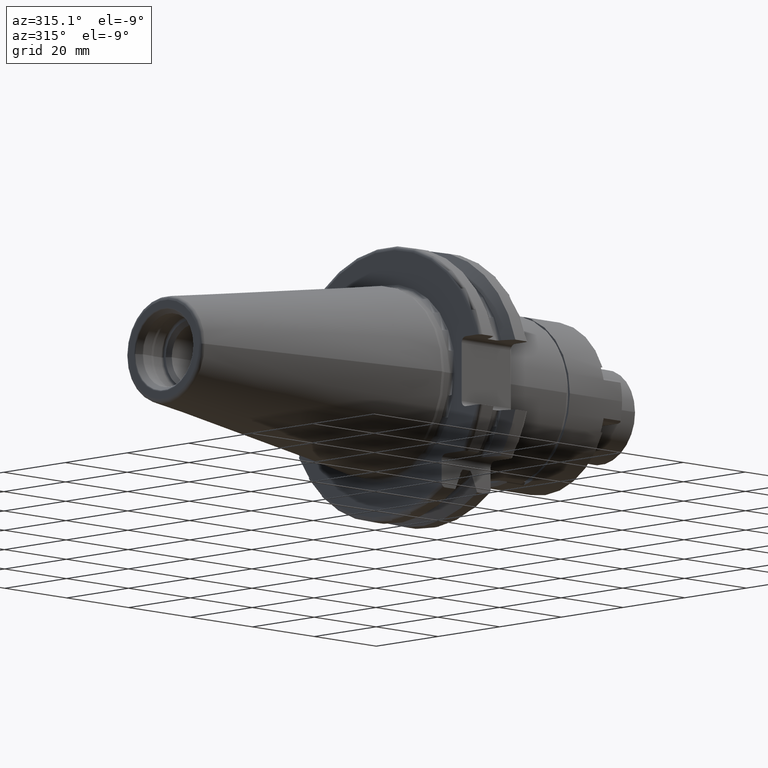
[diagram: clean part render]
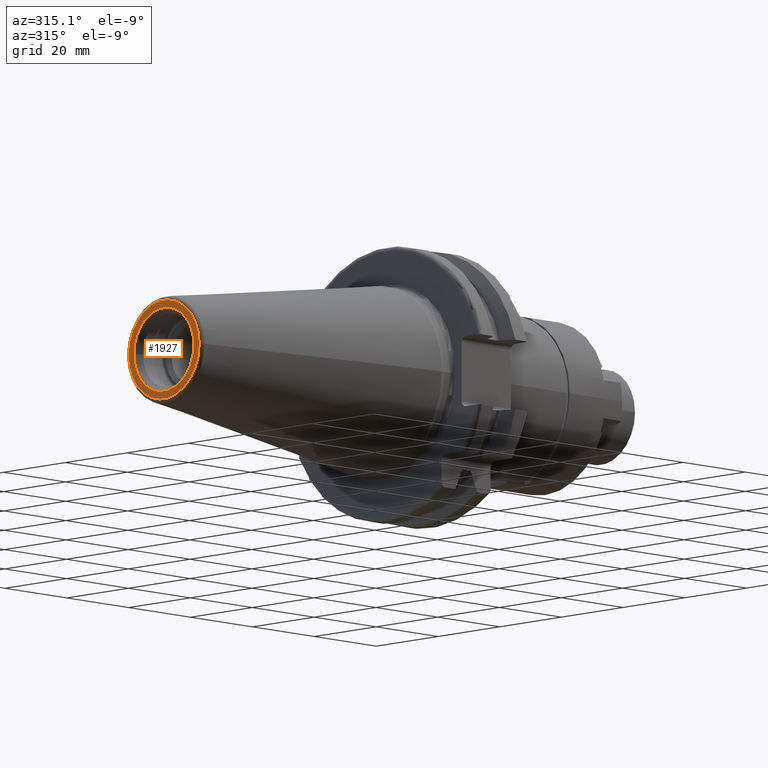
[diagram: same view with one face highlighted and labeled with its STEP entity id]
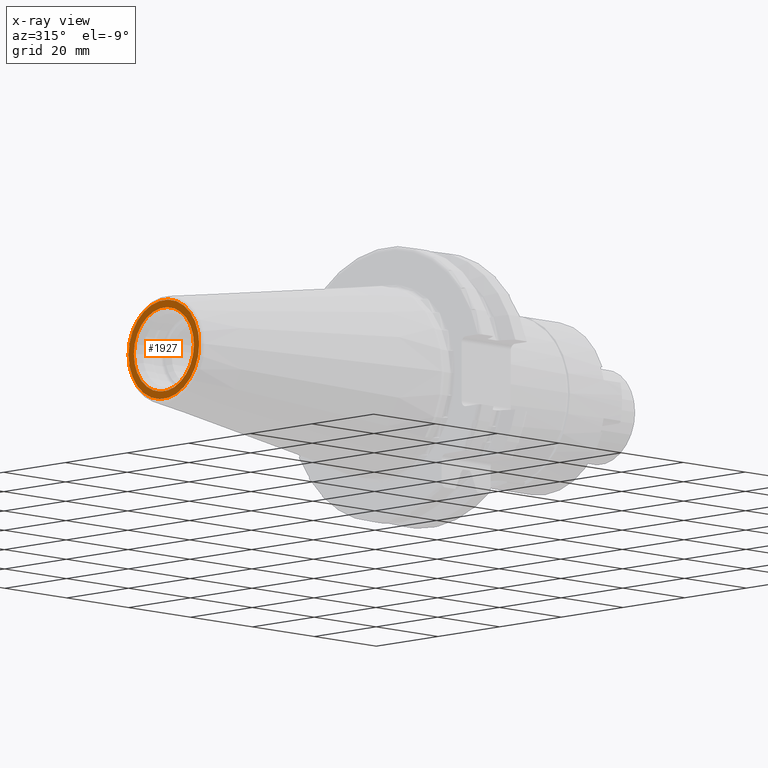
[diagram: x-ray of the same camera — body ghosted, the highlighted face saturated]
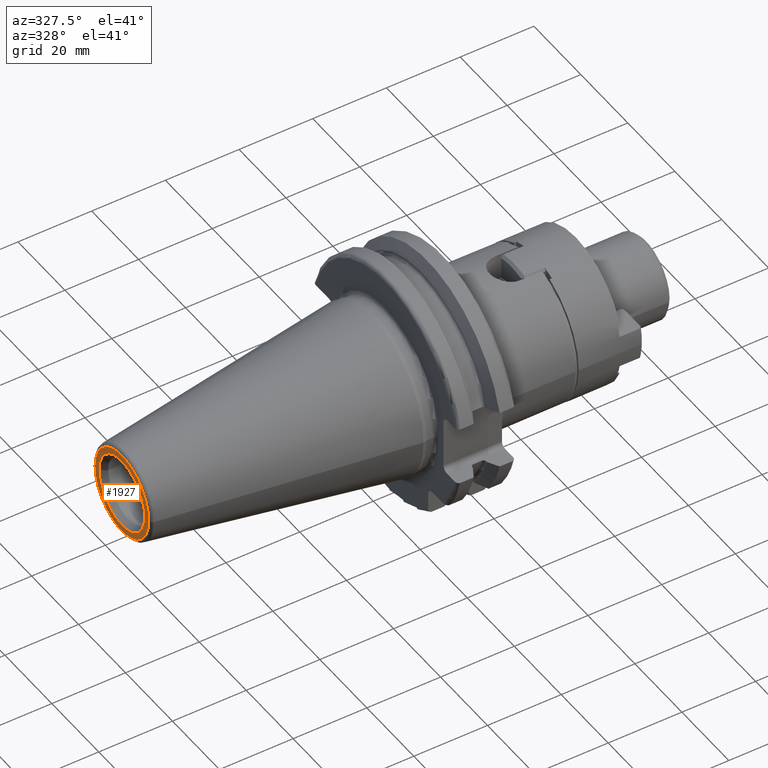
[diagram: same view with one face highlighted and labeled with its STEP entity id]
A machine part, auxiliary view. The second image highlights one B-rep face of the part: STEP entity #1927.
The next image is the same camera in x-ray: the body ghosted, the highlighted face saturated — about 0% of this face is hidden behind the body in this view.
A second angle (auxiliary view) of the same face is appended — the face is thin or edge-on in the first view.
In plain terms, the highlighted planar face has unit normal (1, 0, 0).
Its self-contained STEP definition (entity closure, byte-faithful):
#2=CARTESIAN_POINT('',(-6.825E1,0.E0,0.E0));
#3=DIRECTION('',(-1.E0,0.E0,0.E0));
#4=DIRECTION('',(0.E0,1.E0,0.E0));
#5=AXIS2_PLACEMENT_3D('',#2,#3,#4);
#7=CARTESIAN_POINT('',(-6.825E1,0.E0,0.E0));
#8=DIRECTION('',(1.E0,0.E0,0.E0));
#9=DIRECTION('',(0.E0,1.E0,0.E0));
#10=AXIS2_PLACEMENT_3D('',#7,#8,#9);
#12=CARTESIAN_POINT('',(-6.825E1,0.E0,0.E0));
#13=DIRECTION('',(1.E0,0.E0,0.E0));
#14=DIRECTION('',(0.E0,1.E0,0.E0));
#15=AXIS2_PLACEMENT_3D('',#12,#13,#14);
#17=CARTESIAN_POINT('',(-6.825E1,0.E0,0.E0));
#18=DIRECTION('',(1.E0,0.E0,0.E0));
#19=DIRECTION('',(0.E0,-1.E0,0.E0));
#20=AXIS2_PLACEMENT_3D('',#17,#18,#19);
#1591=CARTESIAN_POINT('',(-6.825E1,1.144954820082E1,0.E0));
#1593=VERTEX_POINT('',#1591);
#1595=CARTESIAN_POINT('',(-6.825E1,-1.144954820082E1,0.E0));
#1597=VERTEX_POINT('',#1595);
#1654=CARTESIAN_POINT('',(-6.825E1,9.730940107676E0,0.E0));
#1655=CARTESIAN_POINT('',(-6.825E1,-9.730940107676E0,0.E0));
#1656=VERTEX_POINT('',#1654);
#1657=VERTEX_POINT('',#1655);
#1910=CARTESIAN_POINT('',(-6.825E1,0.E0,0.E0));
#1911=DIRECTION('',(1.E0,0.E0,0.E0));
#1912=DIRECTION('',(0.E0,-1.E0,0.E0));
#1913=AXIS2_PLACEMENT_3D('',#1910,#1911,#1912);
#1914=PLANE('',#1913);
#1916=ORIENTED_EDGE('',*,*,#1915,.F.);
#1918=ORIENTED_EDGE('',*,*,#1917,.T.);
#1919=EDGE_LOOP('',(#1916,#1918));
#1920=FACE_OUTER_BOUND('',#1919,.F.);
#1922=ORIENTED_EDGE('',*,*,#1921,.F.);
#1924=ORIENTED_EDGE('',*,*,#1923,.F.);
#1925=EDGE_LOOP('',(#1922,#1924));
#1926=FACE_BOUND('',#1925,.F.);
#1927=ADVANCED_FACE('',(#1920,#1926),#1914,.F.);
#6=CIRCLE('',#5,1.144954820082E1);
#11=CIRCLE('',#10,1.144954820082E1);
#16=CIRCLE('',#15,9.730940107676E0);
#21=CIRCLE('',#20,9.730940107676E0);
#1915=EDGE_CURVE('',#1593,#1597,#6,.T.);
#1917=EDGE_CURVE('',#1593,#1597,#11,.T.);
#1921=EDGE_CURVE('',#1656,#1657,#16,.T.);
#1923=EDGE_CURVE('',#1657,#1656,#21,.T.);